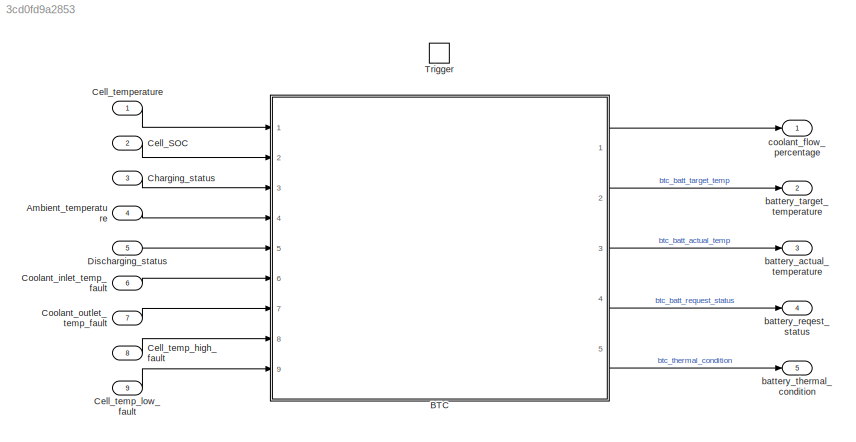
MODEL slx_3cd0fd9a2853
KIND model
CONFIG AbsTol = auto
CONFIG FixedStep = btck_stepSize
CONFIG MaxStep = auto
CONFIG MinStep = auto
CONFIG RelTol = 1e-3
CONFIG SampleTimeConstraint = Unconstrained
CONFIG Solver = FixedStepAuto
CONFIG SolverMode = Auto
CONFIG SolverName = FixedStepAuto
CONFIG StartTime = 0.0
CONFIG StopTime = 10.0
BLOCK [Inport] Ambient_temperature
  IconDisplay = Port number
  Port = 4
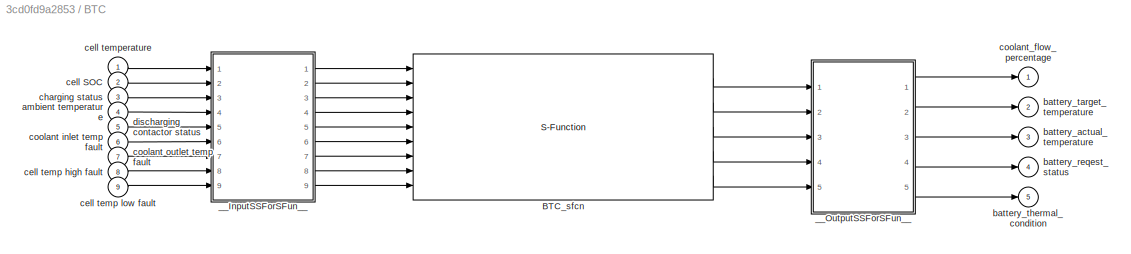
BLOCK [SubSystem] BTC
  Ports = [9, 5]
  RequestExecContextInheritance = off
  Variant = off
BLOCK [S-Function] BTC/BTC_sfcn
  CopyFcn = if ~strcmp(get_param(gcb,'Linkstatus'),'none') && ...\n~strcmp(get_param(gcb,'Linkstatus'),'implicit')      \n  set_param(gcb,'LinkStatus','none');                \nend
  EnableBusSupport = off
  FunctionName = BTC_sf
  Parameters = sfcnParam1, sfcnParam2, sfcnParam3, sfcnParam4, sfcnParam5, sfcnParam6, sfcnParam7, sfcnParam8, sfcnParam9, sfcnParam10, sfcnParam11, sfcnParam12, sfcnParam13
  Ports = [9, 5]
  SFunctionDeploymentMode = off
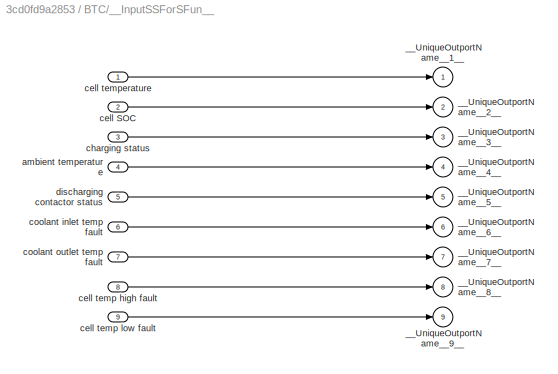
BLOCK [SubSystem] BTC/__InputSSForSFun__
  PermitHierarchicalResolution = ExplicitOnly
  Ports = [9, 9]
  RequestExecContextInheritance = off
  Variant = off
BLOCK [Outport] BTC/__InputSSForSFun__/__UniqueOutportName__1__
  IconDisplay = Port number
BLOCK [Outport] BTC/__InputSSForSFun__/__UniqueOutportName__2__
  IconDisplay = Port number
  Port = 2
BLOCK [Outport] BTC/__InputSSForSFun__/__UniqueOutportName__3__
  IconDisplay = Port number
  Port = 3
BLOCK [Outport] BTC/__InputSSForSFun__/__UniqueOutportName__4__
  IconDisplay = Port number
  Port = 4
BLOCK [Outport] BTC/__InputSSForSFun__/__UniqueOutportName__5__
  IconDisplay = Port number
  Port = 5
BLOCK [Outport] BTC/__InputSSForSFun__/__UniqueOutportName__6__
  IconDisplay = Port number
  Port = 6
BLOCK [Outport] BTC/__InputSSForSFun__/__UniqueOutportName__7__
  IconDisplay = Port number
  Port = 7
BLOCK [Outport] BTC/__InputSSForSFun__/__UniqueOutportName__8__
  IconDisplay = Port number
  Port = 8
BLOCK [Outport] BTC/__InputSSForSFun__/__UniqueOutportName__9__
  IconDisplay = Port number
  Port = 9
BLOCK [Inport] BTC/__InputSSForSFun__/ambient temperature
  IconDisplay = Port number
  Port = 4
BLOCK [Inport] BTC/__InputSSForSFun__/cell SOC
  IconDisplay = Port number
  Port = 2
BLOCK [Inport] BTC/__InputSSForSFun__/cell temp high fault
  IconDisplay = Port number
  OutDataTypeStr = uint8
  Port = 8
BLOCK [Inport] BTC/__InputSSForSFun__/cell temp low fault
  IconDisplay = Port number
  OutDataTypeStr = uint8
  Port = 9
BLOCK [Inport] BTC/__InputSSForSFun__/cell temperature
  IconDisplay = Port number
BLOCK [Inport] BTC/__InputSSForSFun__/charging status
  IconDisplay = Port number
  Port = 3
BLOCK [Inport] BTC/__InputSSForSFun__/coolant inlet temp fault
  IconDisplay = Port number
  Port = 6
BLOCK [Inport] BTC/__InputSSForSFun__/coolant outlet temp fault
  IconDisplay = Port number
  Port = 7
BLOCK [Inport] BTC/__InputSSForSFun__/discharging contactor status
  IconDisplay = Port number
  Port = 5
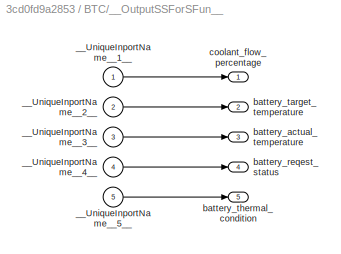
BLOCK [SubSystem] BTC/__OutputSSForSFun__
  PermitHierarchicalResolution = ExplicitOnly
  Ports = [5, 5]
  RequestExecContextInheritance = off
  Variant = off
BLOCK [Inport] BTC/__OutputSSForSFun__/__UniqueInportName__1__
  IconDisplay = Port number
BLOCK [Inport] BTC/__OutputSSForSFun__/__UniqueInportName__2__
  IconDisplay = Port number
  Port = 2
BLOCK [Inport] BTC/__OutputSSForSFun__/__UniqueInportName__3__
  IconDisplay = Port number
  Port = 3
BLOCK [Inport] BTC/__OutputSSForSFun__/__UniqueInportName__4__
  IconDisplay = Port number
  Port = 4
BLOCK [Inport] BTC/__OutputSSForSFun__/__UniqueInportName__5__
  IconDisplay = Port number
  Port = 5
BLOCK [Outport] BTC/__OutputSSForSFun__/battery_actual_temperature
  IconDisplay = Port number
  Port = 3
BLOCK [Outport] BTC/__OutputSSForSFun__/battery_reqest_status
  IconDisplay = Port number
  Port = 4
BLOCK [Outport] BTC/__OutputSSForSFun__/battery_target_temperature
  IconDisplay = Port number
  Port = 2
BLOCK [Outport] BTC/__OutputSSForSFun__/battery_thermal_condition
  IconDisplay = Port number
  Port = 5
BLOCK [Outport] BTC/__OutputSSForSFun__/coolant_flow_percentage
  IconDisplay = Port number
BLOCK [Inport] BTC/ambient temperature
  IconDisplay = Port number
  Port = 4
BLOCK [Outport] BTC/battery_actual_temperature
  IconDisplay = Port number
  Port = 3
BLOCK [Outport] BTC/battery_reqest_status
  IconDisplay = Port number
  Port = 4
BLOCK [Outport] BTC/battery_target_temperature
  IconDisplay = Port number
  Port = 2
BLOCK [Outport] BTC/battery_thermal_condition
  IconDisplay = Port number
  Port = 5
BLOCK [Inport] BTC/cell SOC
  IconDisplay = Port number
  Port = 2
BLOCK [Inport] BTC/cell temp high fault
  IconDisplay = Port number
  OutDataTypeStr = uint8
  Port = 8
BLOCK [Inport] BTC/cell temp low fault
  IconDisplay = Port number
  OutDataTypeStr = uint8
  Port = 9
BLOCK [Inport] BTC/cell temperature
  IconDisplay = Port number
BLOCK [Inport] BTC/charging status
  IconDisplay = Port number
  Port = 3
BLOCK [Inport] BTC/coolant inlet temp fault
  IconDisplay = Port number
  Port = 6
BLOCK [Inport] BTC/coolant outlet temp fault
  IconDisplay = Port number
  Port = 7
BLOCK [Outport] BTC/coolant_flow_percentage
  IconDisplay = Port number
BLOCK [Inport] BTC/discharging contactor status
  IconDisplay = Port number
  Port = 5
BLOCK [Inport] Cell_SOC
  IconDisplay = Port number
  Port = 2
  PortDimensions = 40
BLOCK [Inport] Cell_temp_high_fault
  IconDisplay = Port number
  Port = 8
BLOCK [Inport] Cell_temp_low_fault
  IconDisplay = Port number
  Port = 9
BLOCK [Inport] Cell_temperature
  IconDisplay = Port number
  PortDimensions = 40
BLOCK [Inport] Charging_status
  IconDisplay = Port number
  Port = 3
BLOCK [Inport] Coolant_inlet_temp_fault
  IconDisplay = Port number
  Port = 6
BLOCK [Inport] Coolant_outlet_temp_fault
  IconDisplay = Port number
  Port = 7
BLOCK [Inport] Discharging_status
  IconDisplay = Port number
  Port = 5
BLOCK [TriggerPort] Trigger
  PortDimensions = 1
  Ports = []
  StatesWhenEnabling = held
  TriggerType = function-call
BLOCK [Outport] battery_actual_temperature
  IconDisplay = Port number
  Port = 3
BLOCK [Outport] battery_reqest_status
  IconDisplay = Port number
  Port = 4
BLOCK [Outport] battery_target_temperature
  IconDisplay = Port number
  Port = 2
BLOCK [Outport] battery_thermal_condition
  IconDisplay = Port number
  Port = 5
BLOCK [Outport] coolant_flow_percentage
  IconDisplay = Port number
LINE Ambient_temperature:1 -> BTC:4
LINE BTC/BTC_sfcn:1 -> BTC/__OutputSSForSFun__:1
LINE BTC/BTC_sfcn:2 -> BTC/__OutputSSForSFun__:2
LINE BTC/BTC_sfcn:3 -> BTC/__OutputSSForSFun__:3
LINE BTC/BTC_sfcn:4 -> BTC/__OutputSSForSFun__:4
LINE BTC/BTC_sfcn:5 -> BTC/__OutputSSForSFun__:5
LINE BTC/__InputSSForSFun__/ambient temperature:1 -> BTC/__InputSSForSFun__/__UniqueOutportName__4__:1
LINE BTC/__InputSSForSFun__/cell SOC:1 -> BTC/__InputSSForSFun__/__UniqueOutportName__2__:1
LINE BTC/__InputSSForSFun__/cell temp high fault:1 -> BTC/__InputSSForSFun__/__UniqueOutportName__8__:1
LINE BTC/__InputSSForSFun__/cell temp low fault:1 -> BTC/__InputSSForSFun__/__UniqueOutportName__9__:1
LINE BTC/__InputSSForSFun__/cell temperature:1 -> BTC/__InputSSForSFun__/__UniqueOutportName__1__:1
LINE BTC/__InputSSForSFun__/charging status:1 -> BTC/__InputSSForSFun__/__UniqueOutportName__3__:1
LINE BTC/__InputSSForSFun__/coolant inlet temp fault:1 -> BTC/__InputSSForSFun__/__UniqueOutportName__6__:1
LINE BTC/__InputSSForSFun__/coolant outlet temp fault:1 -> BTC/__InputSSForSFun__/__UniqueOutportName__7__:1
LINE BTC/__InputSSForSFun__/discharging contactor status:1 -> BTC/__InputSSForSFun__/__UniqueOutportName__5__:1
LINE BTC/__InputSSForSFun__:1 -> BTC/BTC_sfcn:1
LINE BTC/__InputSSForSFun__:2 -> BTC/BTC_sfcn:2
LINE BTC/__InputSSForSFun__:3 -> BTC/BTC_sfcn:3
LINE BTC/__InputSSForSFun__:4 -> BTC/BTC_sfcn:4
LINE BTC/__InputSSForSFun__:5 -> BTC/BTC_sfcn:5
LINE BTC/__InputSSForSFun__:6 -> BTC/BTC_sfcn:6
LINE BTC/__InputSSForSFun__:7 -> BTC/BTC_sfcn:7
LINE BTC/__InputSSForSFun__:8 -> BTC/BTC_sfcn:8
LINE BTC/__InputSSForSFun__:9 -> BTC/BTC_sfcn:9
LINE BTC/__OutputSSForSFun__/__UniqueInportName__1__:1 -> BTC/__OutputSSForSFun__/coolant_flow_percentage:1
LINE BTC/__OutputSSForSFun__/__UniqueInportName__2__:1 -> BTC/__OutputSSForSFun__/battery_target_temperature:1
LINE BTC/__OutputSSForSFun__/__UniqueInportName__3__:1 -> BTC/__OutputSSForSFun__/battery_actual_temperature:1
LINE BTC/__OutputSSForSFun__/__UniqueInportName__4__:1 -> BTC/__OutputSSForSFun__/battery_reqest_status:1
LINE BTC/__OutputSSForSFun__/__UniqueInportName__5__:1 -> BTC/__OutputSSForSFun__/battery_thermal_condition:1
LINE BTC/__OutputSSForSFun__:1 -> BTC/coolant_flow_percentage:1
LINE BTC/__OutputSSForSFun__:2 -> BTC/battery_target_temperature:1
LINE BTC/__OutputSSForSFun__:3 -> BTC/battery_actual_temperature:1
LINE BTC/__OutputSSForSFun__:4 -> BTC/battery_reqest_status:1
LINE BTC/__OutputSSForSFun__:5 -> BTC/battery_thermal_condition:1
LINE BTC/ambient temperature:1 -> BTC/__InputSSForSFun__:4
LINE BTC/cell SOC:1 -> BTC/__InputSSForSFun__:2
LINE BTC/cell temp high fault:1 -> BTC/__InputSSForSFun__:8
LINE BTC/cell temp low fault:1 -> BTC/__InputSSForSFun__:9
LINE BTC/cell temperature:1 -> BTC/__InputSSForSFun__:1
LINE BTC/charging status:1 -> BTC/__InputSSForSFun__:3
LINE BTC/coolant inlet temp fault:1 -> BTC/__InputSSForSFun__:6
LINE BTC/coolant outlet temp fault:1 -> BTC/__InputSSForSFun__:7
LINE BTC/discharging contactor status:1 -> BTC/__InputSSForSFun__:5
LINE BTC:1 -> coolant_flow_percentage:1
LINE BTC:2 -> battery_target_temperature:1
LINE BTC:3 -> battery_actual_temperature:1
LINE BTC:4 -> battery_reqest_status:1
LINE BTC:5 -> battery_thermal_condition:1
LINE Cell_SOC:1 -> BTC:2
LINE Cell_temp_high_fault:1 -> BTC:8
LINE Cell_temp_low_fault:1 -> BTC:9
LINE Cell_temperature:1 -> BTC:1
LINE Charging_status:1 -> BTC:3
LINE Coolant_inlet_temp_fault:1 -> BTC:6
LINE Coolant_outlet_temp_fault:1 -> BTC:7
LINE Discharging_status:1 -> BTC:5
